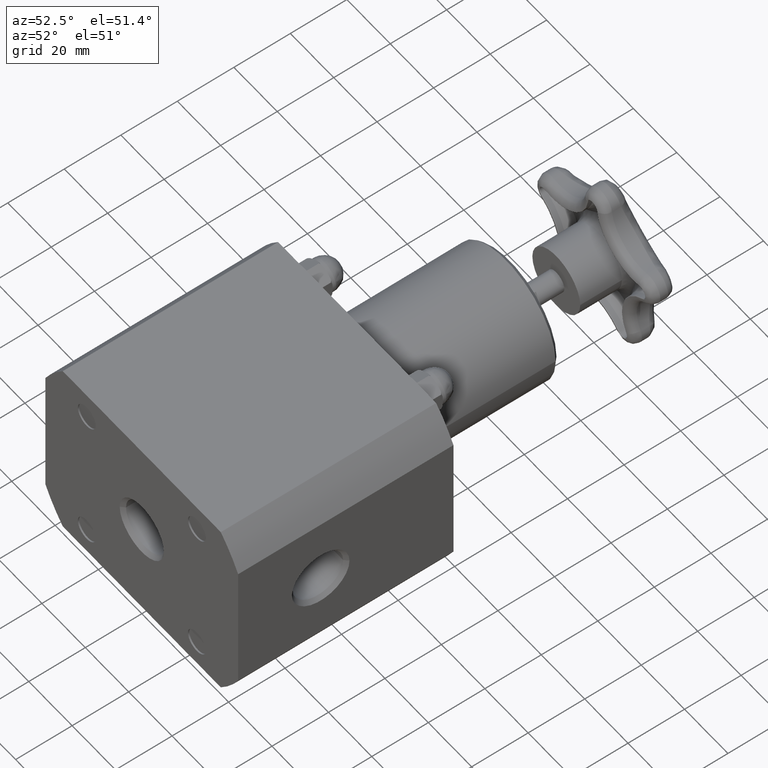
[diagram: clean part render]
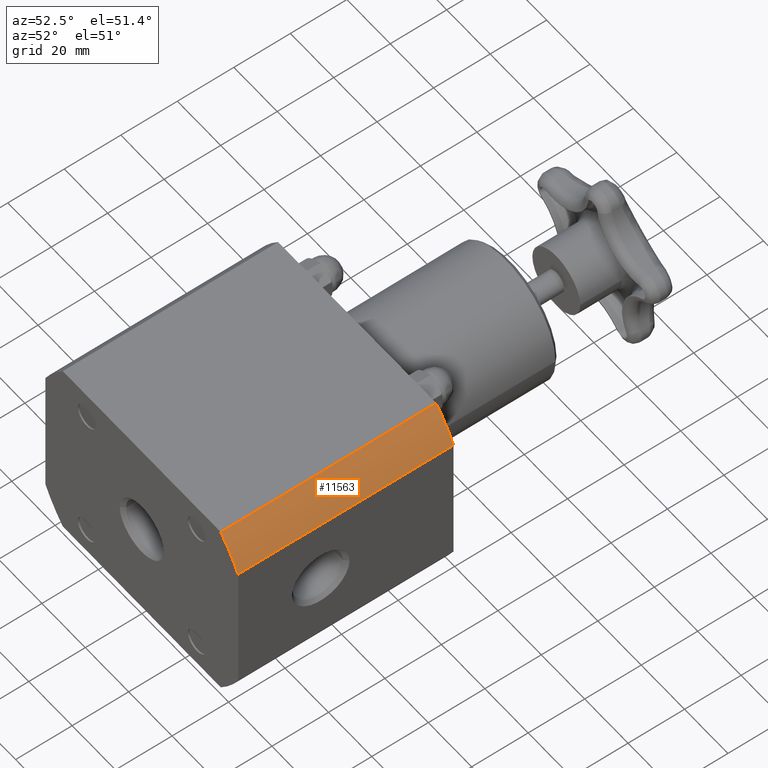
[diagram: same view with one face highlighted and labeled with its STEP entity id]
A machine part, auxiliary view. The second image highlights one B-rep face of the part: STEP entity #11563.
In plain terms, the highlighted cylindrical surface (partial cylindrical patch) has radius 50.4825 mm, axis along (-0, 1, 0).
Its self-contained STEP definition (entity closure, byte-faithful):
#10855=CARTESIAN_POINT('',(1.435106703349964,3.000000000000001,1.374999999999999));
#10856=VERTEX_POINT('',#10855);
#10863=CARTESIAN_POINT('',(1.749999999999999,3.000000000000002,0.942155109310564));
#10864=VERTEX_POINT('',#10863);
#10865=CARTESIAN_POINT('',(-1.102337E-015,3.000000000000000,-5.510831E-017));
#10866=DIRECTION('',(0.0,-1.0,0.0));
#10867=DIRECTION('',(1.0,0.0,0.0));
#10868=AXIS2_PLACEMENT_3D('',#10865,#10866,#10867);
#10869=CIRCLE('',#10868,1.987500000000001);
#10870=EDGE_CURVE('',#10864,#10856,#10869,.T.);
#11239=CARTESIAN_POINT('',(1.435106703349963,3.227068E-016,1.375000000000000));
#11240=VERTEX_POINT('',#11239);
#11241=CARTESIAN_POINT('',(1.750000000000000,6.041433E-016,0.942155109310564));
#11242=VERTEX_POINT('',#11241);
#11243=CARTESIAN_POINT('',(0.0,0.0,0.0));
#11244=DIRECTION('',(0.0,1.0,0.0));
#11245=DIRECTION('',(1.0,0.0,0.0));
#11246=AXIS2_PLACEMENT_3D('',#11243,#11244,#11245);
#11247=CIRCLE('',#11246,1.987500000000000);
#11248=EDGE_CURVE('',#11240,#11242,#11247,.T.);
#11443=CARTESIAN_POINT('',(1.750000000000000,6.041433E-016,0.942155109310564));
#11444=DIRECTION('',(0.0,1.0,0.0));
#11445=VECTOR('',#11444,3.000000000000001);
#11446=LINE('',#11443,#11445);
#11447=EDGE_CURVE('',#11242,#10864,#11446,.T.);
#11484=CARTESIAN_POINT('',(1.435106703349963,3.227068E-016,1.375000000000000));
#11485=DIRECTION('',(0.0,1.0,0.0));
#11486=VECTOR('',#11485,3.000000000000001);
#11487=LINE('',#11484,#11486);
#11488=EDGE_CURVE('',#11240,#10856,#11487,.T.);
#11552=CARTESIAN_POINT('',(0.0,0.0,0.0));
#11553=DIRECTION('',(-4.996004E-016,1.0,2.867440E-016));
#11554=DIRECTION('',(1.0,0.0,0.0));
#11555=AXIS2_PLACEMENT_3D('',#11552,#11553,#11554);
#11556=CYLINDRICAL_SURFACE('',#11555,1.987500000000000);
#11557=ORIENTED_EDGE('',*,*,#11488,.F.);
#11558=ORIENTED_EDGE('',*,*,#11248,.T.);
#11559=ORIENTED_EDGE('',*,*,#11447,.T.);
#11560=ORIENTED_EDGE('',*,*,#10870,.T.);
#11561=EDGE_LOOP('',(#11557,#11558,#11559,#11560));
#11562=FACE_OUTER_BOUND('',#11561,.T.);
#11563=ADVANCED_FACE('',(#11562),#11556,.T.);